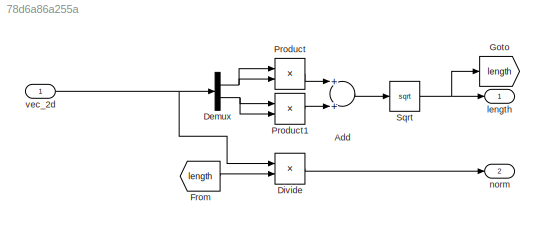
MODEL slx_78d6a86a255a
KIND model
CONFIG AbsTol = auto
CONFIG EnableMultiTasking = off
CONFIG FixedStep = dt
CONFIG MaxStep = auto
CONFIG MinStep = auto
CONFIG RelTol = 1e-3
CONFIG SampleTimeConstraint = Unconstrained
CONFIG Solver = FixedStepAuto
CONFIG SolverName = FixedStepAuto
CONFIG StartTime = 0.0
CONFIG StopTime = 5
BLOCK [Sum] Add
  InputSameDT = off
  OutDataTypeStr = Inherit: Inherit via internal rule
  Ports = [2, 1]
  SaturateOnIntegerOverflow = off
BLOCK [Demux] Demux
  DisplayOption = bar
  Outputs = 2
  Ports = [1, 2]
BLOCK [Product] Divide
  InputSameDT = off
  Inputs = */
  OutDataTypeStr = Inherit: Inherit via internal rule
  Ports = [2, 1]
  RndMeth = Floor
  SaturateOnIntegerOverflow = off
BLOCK [From] From
  GotoTag = length
BLOCK [Goto] Goto
  GotoTag = length
BLOCK [Product] Product
  InputSameDT = off
  OutDataTypeStr = Inherit: Inherit via internal rule
  Ports = [2, 1]
  RndMeth = Floor
  SaturateOnIntegerOverflow = off
BLOCK [Product] Product1
  InputSameDT = off
  OutDataTypeStr = Inherit: Inherit via internal rule
  Ports = [2, 1]
  RndMeth = Floor
  SaturateOnIntegerOverflow = off
BLOCK [Sqrt] Sqrt
BLOCK [Outport] length
  IconDisplay = Port number
  OutDataTypeStr = double
  PortDimensions = 1
  SampleTime = 0
  SamplingMode = Sample based
  SignalType = real
BLOCK [Outport] norm
  IconDisplay = Port number
  OutDataTypeStr = double
  Port = 2
  PortDimensions = 2
  SampleTime = 0
  SamplingMode = Sample based
  SignalType = real
BLOCK [Inport] vec_2d
  IconDisplay = Port number
  OutDataTypeStr = double
  PortDimensions = 2
  SampleTime = 0
  SamplingMode = Sample based
  SignalType = real
LINE Add:1 -> Sqrt:1
NET Demux:1 -> Product:1, Product:2
NET Demux:2 -> Product1:1, Product1:2
LINE Divide:1 -> norm:1
LINE From:1 -> Divide:2
LINE Product1:1 -> Add:2
LINE Product:1 -> Add:1
NET Sqrt:1 -> Goto:1, length:1
NET vec_2d:1 -> Demux:1, Divide:1
note: NET lines group one-source signal fan-out (src -> all destinations, sorted); 1:1 wires keep LINE
